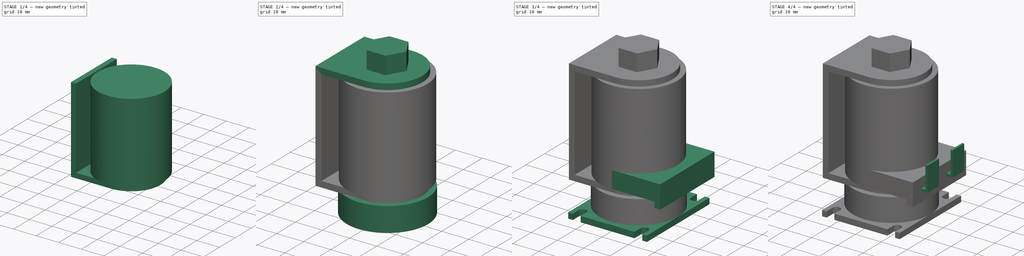
[diagram: build sequence overview — one tinted view per stage of 4, left to right]
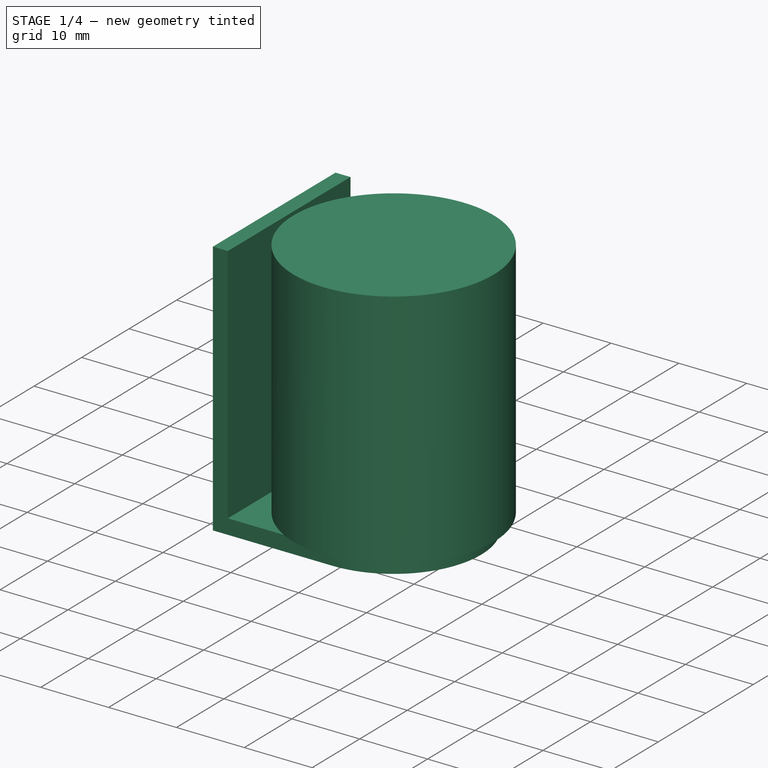
[diagram: stage 1 of 4 — iso view after this stage's code; geometry added in this stage tinted green]
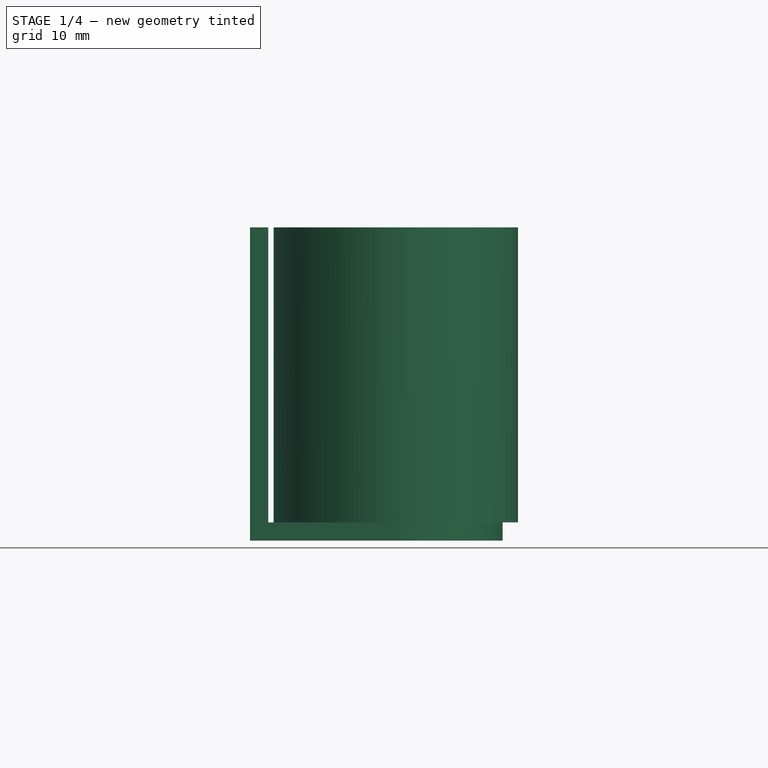
[diagram: stage 1 of 4 — front view after this stage's code; geometry added in this stage tinted green]
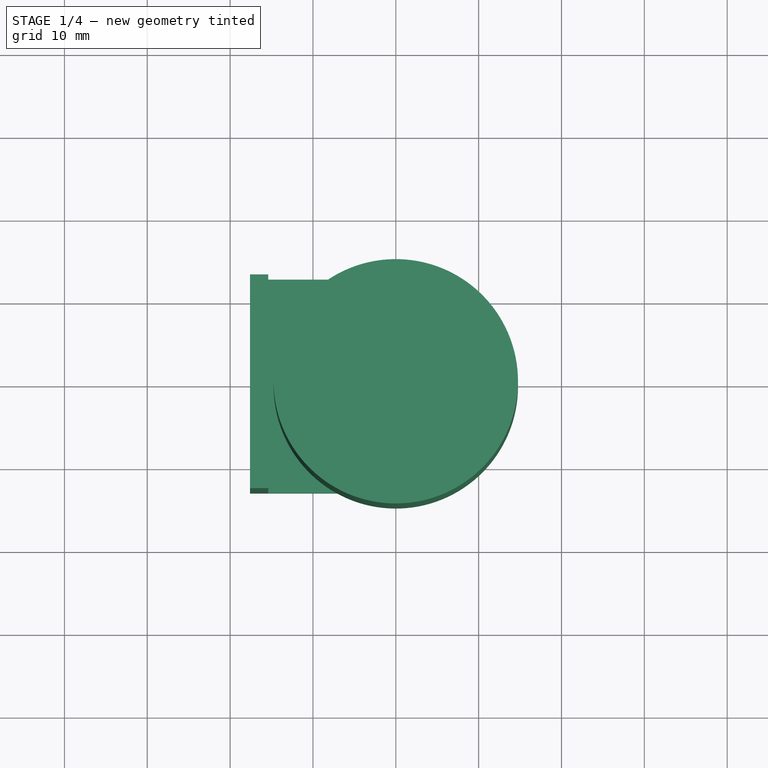
[diagram: stage 1 of 4 — top view after this stage's code; geometry added in this stage tinted green]
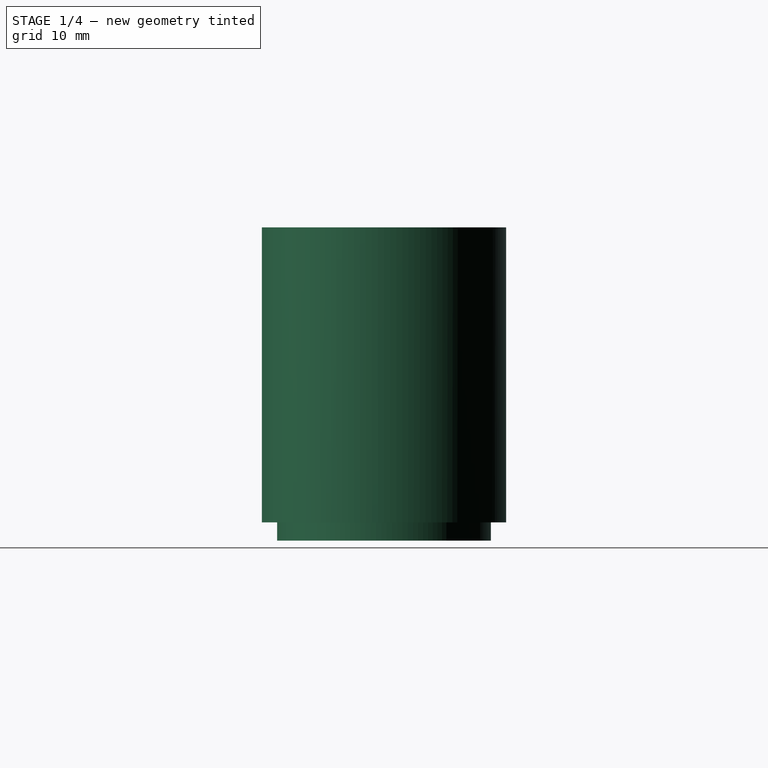
[diagram: stage 1 of 4 — right view after this stage's code; geometry added in this stage tinted green]
FCSTD DOCUMENT  (FreeCAD 1.0R39109 (Git))
Label: Coil 46.008.111
License: All rights reserved
LicenseURL: https://en.wikipedia.org/wiki/All_rights_reserved
objects: Sketcher::SketchObject×10, PartDesign::Pad×10, PartDesign::Body×1
note: 51 computed .brp shape members not serialized (recipe doc carries the construction recipe); baked Part::Feature solids carry a one-line shape summary decoded from their .brp

FEATURE [Sketcher::SketchObject] Sketch
  ArcFitTolerance = 1e-06
  AttachmentSupport = -> [XY_Plane]
  FullyConstrained = true
  MakeInternals = false
  MapMode = 5
  sketch-geometry (5):
    g0: ArcOfCircle CenterX=0 CenterY=0 CenterZ=0 NormalX=0 NormalY=0 NormalZ=1 AngleXU=0 Radius=12.9 StartAngle=4.71239 EndAngle=7.85398
    g1: LineSegment StartX=-4.9864e-12 StartY=-12.9 StartZ=0 EndX=-17.6 EndY=-12.9 EndZ=0
    g2: LineSegment StartX=-4.9915e-12 StartY=12.9 StartZ=0 EndX=-17.6 EndY=12.9 EndZ=0
    g3: LineSegment StartX=-17.6 StartY=12.9 StartZ=0 EndX=-17.6 EndY=-12.9 EndZ=0
    g4: LineSegment [constr] StartX=-17.6 StartY=8e-16 StartZ=0 EndX=12.9 EndY=8e-16 EndZ=0
  constraints (13):
    c: Tangent(g0,g1) = 1.5708
    c: Tangent(g0,g2) = -1.5708
    c: Horizontal(g2)
    c: Coincident(g0,g-1)
    c: Coincident(g3,g2)
    c: Coincident(g3,g1)
    c: Vertical(g3)
    c: Horizontal(g1)
    c: Symmetric(g3,g3,g4)
    c: PointOnObject(g4,g0)
    c: Horizontal(g4)
    c: DistanceX(g4,g4) = 30.5
    c: Diameter(g0) = 25.8
FEATURE [PartDesign::Pad] Pad  label="Pad Metal1"
  Direction = (0,0,1)
  Length = 2.2
  Length2 = 10
  Profile = -> Sketch
  ReferenceAxis = -> Sketch [N_Axis]
  Refine = true
  Suppressed = false
  Type = 0
FEATURE [Sketcher::SketchObject] Sketch001
  ArcFitTolerance = 1e-06
  AttachmentOffset = pos=(0,0,2.2) rot=(0,0,1;0rad)
  AttachmentSupport = -> [XY_Plane]
  ExternalGeometry = -> [Pad]
  FullyConstrained = true
  MakeInternals = false
  MapMode = 5
  Placement = pos=(0,0,2.2) rot=(0,0,1;0rad)
  sketch-geometry (5):
    g0: Circle CenterX=0 CenterY=0 CenterZ=0 NormalX=0 NormalY=0 NormalZ=1 AngleXU=0 Radius=14.75
    g1: LineSegment StartX=-17.6 StartY=12.9 StartZ=0 EndX=-17.6 EndY=-12.9 EndZ=0
    g2: LineSegment StartX=-17.6 StartY=-12.9 StartZ=0 EndX=-15.4 EndY=-12.9 EndZ=0
    g3: LineSegment StartX=-15.4 StartY=-12.9 StartZ=0 EndX=-15.4 EndY=12.9 EndZ=0
    g4: LineSegment StartX=-15.4 StartY=12.9 StartZ=0 EndX=-17.6 EndY=12.9 EndZ=0
  constraints (12):
    c: Coincident(g0,g-1)
    c: Diameter(g0) = 29.5
    c: Coincident(g1,g2)
    c: Coincident(g2,g3)
    c: Coincident(g3,g4)
    c: Coincident(g4,g1)
    c: Vertical(g1)
    c: Horizontal(g2)
    c: Horizontal(g4)
    c: Coincident(g1,g-3)
    c: Symmetric(g2,g3,g-1)
    c: DistanceX(g4,g4) = 2.2
FEATURE [PartDesign::Pad] Pad001  label="Pad Coil"
  BaseFeature = -> Pad
  Direction = (0,0,1)
  Length = 35.6
  Length2 = 10
  Profile = -> Sketch001
  ReferenceAxis = -> Sketch001 [N_Axis]
  Refine = true
  Suppressed = false
  Type = 0
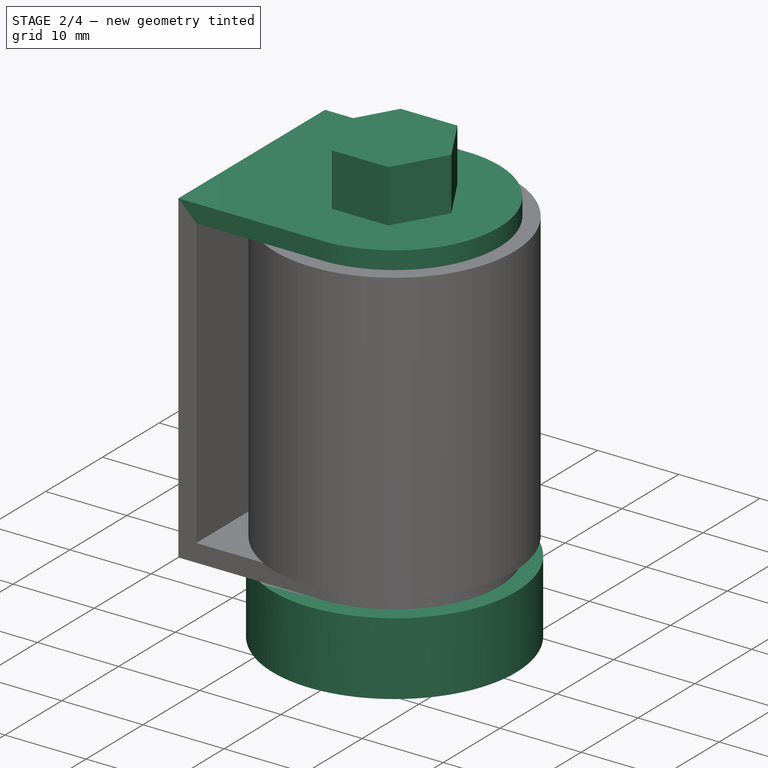
[diagram: stage 2 of 4 — iso view after this stage's code; geometry added in this stage tinted green]
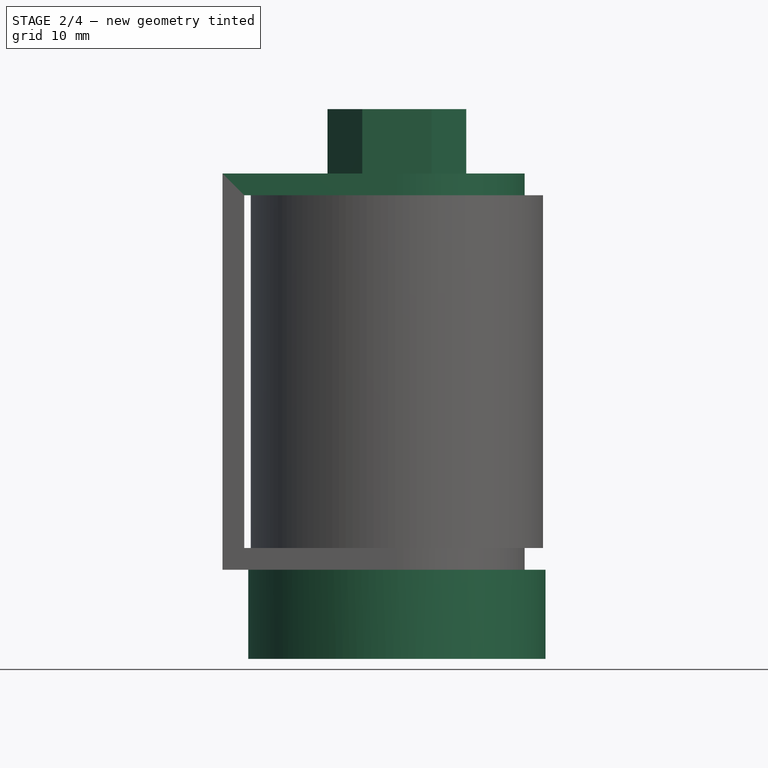
[diagram: stage 2 of 4 — front view after this stage's code; geometry added in this stage tinted green]
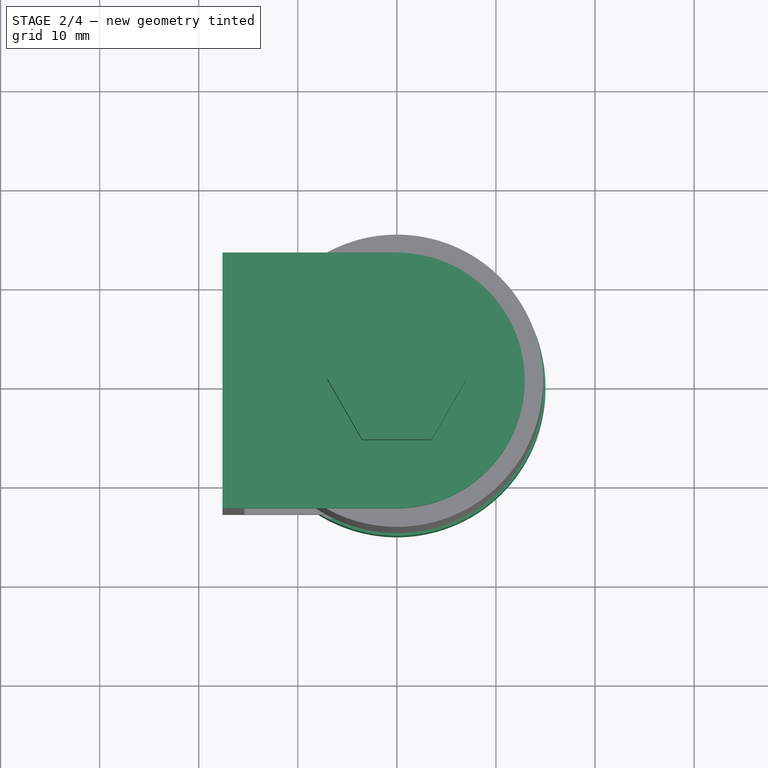
[diagram: stage 2 of 4 — top view after this stage's code; geometry added in this stage tinted green]
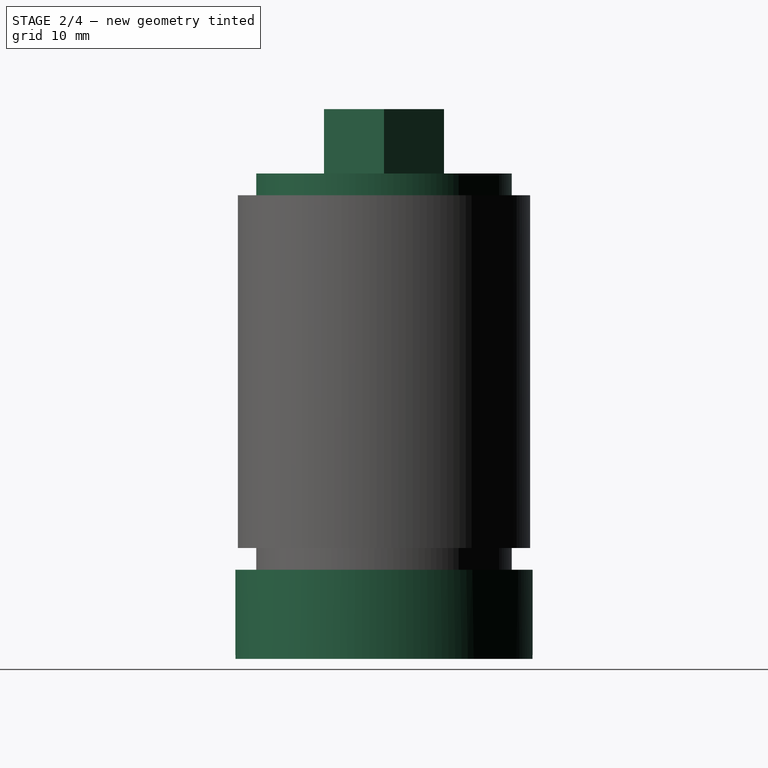
[diagram: stage 2 of 4 — right view after this stage's code; geometry added in this stage tinted green]
FEATURE [Sketcher::SketchObject] Sketch002
  ArcFitTolerance = 1e-06
  AttachmentOffset = pos=(0,0,37.8) rot=(0,0,1;0rad)
  AttachmentSupport = -> [XY_Plane]
  ExternalGeometry = -> [Pad]
  FullyConstrained = false
  MakeInternals = false
  MapMode = 5
  Placement = pos=(0,0,37.8) rot=(0,0,1;0rad)
  expr: .AttachmentOffset.Base.z = 40 - 2.2
  sketch-geometry (4):
    g0: LineSegment StartX=-17.6 StartY=12.9 StartZ=0 EndX=-4.9916e-12 EndY=12.9 EndZ=0
    g1: LineSegment StartX=-17.6 StartY=12.9 StartZ=0 EndX=-17.6 EndY=-12.9 EndZ=0
    g2: LineSegment StartX=-17.6 StartY=-12.9 StartZ=0 EndX=0 EndY=-12.9 EndZ=0
    g3: ArcOfCircle CenterX=0 CenterY=0 CenterZ=0 NormalX=0 NormalY=0 NormalZ=1 AngleXU=0 Radius=12.9 StartAngle=4.71239 EndAngle=7.85398
  constraints (8):
    c: Coincident(g0,g-3)
    c: Coincident(g0,g-3)
    c: Coincident(g1,g0)
    c: Coincident(g1,g-4)
    c: Coincident(g2,g1)
    c: Coincident(g2,g-4)
    c: Coincident(g3,g-1)
    c: Coincident(g3,g-3)
FEATURE [PartDesign::Pad] Pad002  label="Pad Metal 2"
  BaseFeature = -> Pad001
  Direction = (0,0,1)
  Length = 2.2
  Length2 = 10
  Profile = -> Sketch002
  ReferenceAxis = -> Sketch002 [N_Axis]
  Refine = true
  Suppressed = false
  Type = 0
FEATURE [Sketcher::SketchObject] Sketch003
  ArcFitTolerance = 1e-06
  AttachmentOffset = pos=(0,0,40) rot=(0,0,1;0rad)
  AttachmentSupport = -> [XY_Plane]
  FullyConstrained = true
  MakeInternals = false
  MapMode = 5
  Placement = pos=(0,0,40) rot=(0,0,1;0rad)
  sketch-geometry (7):
    g0: LineSegment StartX=3.5 StartY=6.06218 StartZ=0 EndX=-3.5 EndY=6.06218 EndZ=0
    g1: LineSegment StartX=-3.5 StartY=6.06218 StartZ=0 EndX=-7 EndY=0 EndZ=0
    g2: LineSegment StartX=-7 StartY=0 StartZ=0 EndX=-3.5 EndY=-6.06218 EndZ=0
    g3: LineSegment StartX=-3.5 StartY=-6.06218 StartZ=0 EndX=3.5 EndY=-6.06218 EndZ=0
    g4: LineSegment StartX=3.5 StartY=-6.06218 StartZ=0 EndX=7 EndY=-9e-16 EndZ=0
    g5: LineSegment StartX=7 StartY=-9e-16 StartZ=0 EndX=3.5 EndY=6.06218 EndZ=0
    g6: Circle [constr] CenterX=0 CenterY=0 CenterZ=0 NormalX=0 NormalY=0 NormalZ=1 AngleXU=0 Radius=7
  constraints (16):
    c: Coincident(g0,g1)
    c: Coincident(g1,g2)
    c: Coincident(g2,g3)
    c: Coincident(g3,g4)
    c: Coincident(g4,g5)
    c: Coincident(g5,g0)
    c: Equal(g0, g1-g5) x5
    c: PointOnObject(g0,g6)
    c: PointOnObject(g1,g6)
    c: PointOnObject(g2,g6)
    c: PointOnObject(g3,g6)
    c: PointOnObject(g4,g6)
    c: PointOnObject(g5,g6)
    c: Coincident(g6,g-1)
    c: Horizontal(g0)
    c: Diameter(g6) = 14
FEATURE [PartDesign::Pad] Pad003  label="Pad nut"
  BaseFeature = -> Pad002
  Direction = (0,0,1)
  Length = 6.5
  Length2 = 10
  Profile = -> Sketch003
  ReferenceAxis = -> Sketch003 [N_Axis]
  Refine = true
  Suppressed = false
  Type = 0
FEATURE [Sketcher::SketchObject] Sketch004
  ArcFitTolerance = 1e-06
  AttachmentSupport = -> [XY_Plane]
  FullyConstrained = true
  MakeInternals = false
  MapMode = 5
  sketch-geometry (1):
    g0: Circle CenterX=0 CenterY=0 CenterZ=0 NormalX=0 NormalY=0 NormalZ=1 AngleXU=0 Radius=15
  constraints (2):
    c: Coincident(g0,g-1)
    c: Diameter(g0) = 30
FEATURE [PartDesign::Pad] Pad004
  BaseFeature = -> Pad003
  Direction = (0,0,1)
  Length = 9
  Length2 = 10
  Profile = -> Sketch004
  ReferenceAxis = -> Sketch004 [N_Axis]
  Refine = true
  Reversed = true
  Suppressed = false
  Type = 0
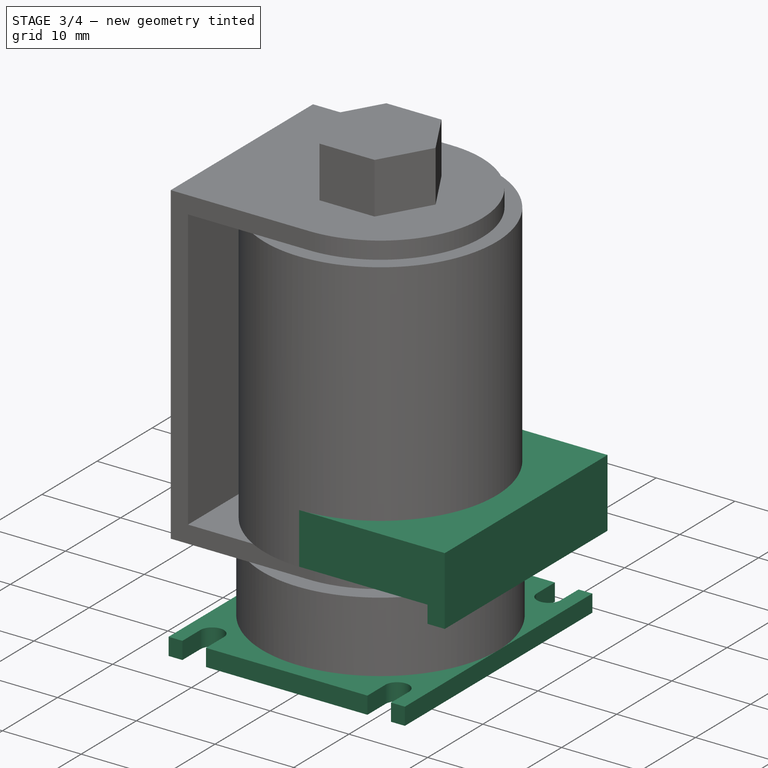
[diagram: stage 3 of 4 — iso view after this stage's code; geometry added in this stage tinted green]
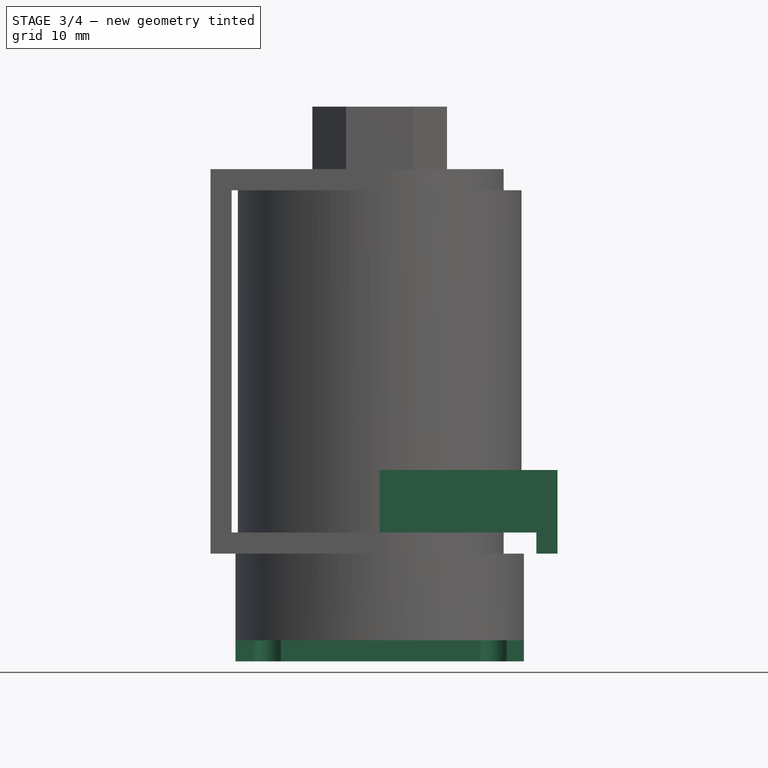
[diagram: stage 3 of 4 — front view after this stage's code; geometry added in this stage tinted green]
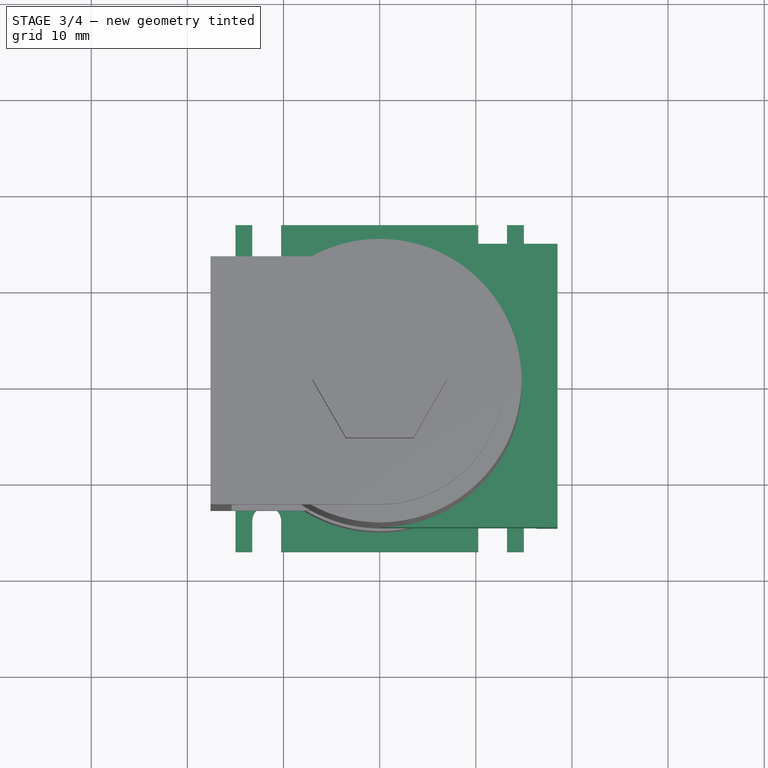
[diagram: stage 3 of 4 — top view after this stage's code; geometry added in this stage tinted green]
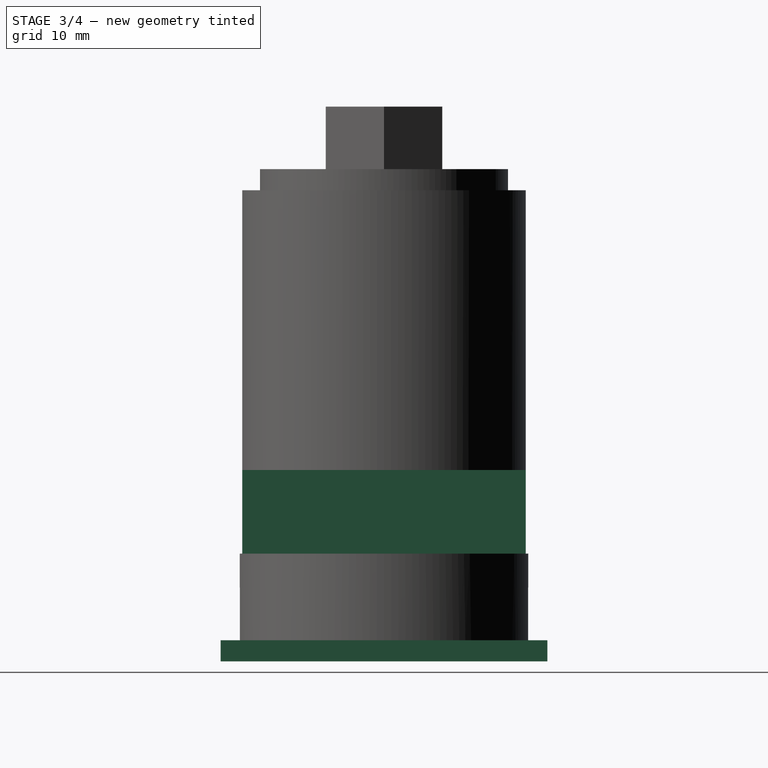
[diagram: stage 3 of 4 — right view after this stage's code; geometry added in this stage tinted green]
FEATURE [Sketcher::SketchObject] Sketch005
  ArcFitTolerance = 1e-06
  AttachmentOffset = pos=(0,0,-9) rot=(0,0,1;0rad)
  AttachmentSupport = -> [XY_Plane]
  FullyConstrained = true
  MakeInternals = false
  MapMode = 5
  Placement = pos=(0,0,-9) rot=(0,0,1;0rad)
  sketch-geometry (20):
    g0: LineSegment StartX=-15 StartY=17 StartZ=0 EndX=-15 EndY=-17 EndZ=0
    g1: LineSegment StartX=-15 StartY=-17 StartZ=0 EndX=-13.25 EndY=-17 EndZ=0
    g2: LineSegment StartX=15 StartY=-17 StartZ=0 EndX=15 EndY=17 EndZ=0
    g3: LineSegment StartX=15 StartY=17 StartZ=0 EndX=13.25 EndY=17 EndZ=0
    g4: ArcOfCircle CenterX=-11.75 CenterY=13.75 CenterZ=0 NormalX=0 NormalY=0 NormalZ=1 AngleXU=0 Radius=1.5 StartAngle=3.14159 EndAngle=6.28319
    g5: LineSegment StartX=-13.25 StartY=13.75 StartZ=0 EndX=-13.25 EndY=17 EndZ=0
    g6: LineSegment StartX=-10.25 StartY=13.75 StartZ=0 EndX=-10.25 EndY=17 EndZ=0
    g7: ArcOfCircle CenterX=11.75 CenterY=13.75 CenterZ=0 NormalX=0 NormalY=0 NormalZ=1 AngleXU=0 Radius=1.5 StartAngle=3.14159 EndAngle=6.28319
    g8: LineSegment StartX=10.25 StartY=13.75 StartZ=0 EndX=10.25 EndY=17 EndZ=0
    g9: LineSegment StartX=13.25 StartY=13.75 StartZ=0 EndX=13.25 EndY=17 EndZ=0
    g10: ArcOfCircle CenterX=11.75 CenterY=-13.75 CenterZ=0 NormalX=0 NormalY=0 NormalZ=1 AngleXU=0 Radius=1.5 StartAngle=4e-16 EndAngle=3.14159
    g11: LineSegment StartX=13.25 StartY=-13.75 StartZ=0 EndX=13.25 EndY=-17 EndZ=0
    g12: LineSegment StartX=10.25 StartY=-13.75 StartZ=0 EndX=10.25 EndY=-17 EndZ=0
    g13: ArcOfCircle CenterX=-11.75 CenterY=-13.75 CenterZ=0 NormalX=0 NormalY=0 NormalZ=1 AngleXU=0 Radius=1.5 StartAngle=3e-16 EndAngle=3.14159
    g14: LineSegment StartX=-10.25 StartY=-13.75 StartZ=0 EndX=-10.25 EndY=-17 EndZ=0
    g15: LineSegment StartX=-13.25 StartY=-13.75 StartZ=0 EndX=-13.25 EndY=-17 EndZ=0
    g16: LineSegment StartX=-10.25 StartY=-17 StartZ=0 EndX=10.25 EndY=-17 EndZ=0
    g17: LineSegment StartX=13.25 StartY=-17 StartZ=0 EndX=15 EndY=-17 EndZ=0
    g18: LineSegment StartX=10.25 StartY=17 StartZ=0 EndX=-10.25 EndY=17 EndZ=0
    g19: LineSegment StartX=-13.25 StartY=17 StartZ=0 EndX=-15 EndY=17 EndZ=0
  constraints (58):
    c: Coincident(g0,g1)
    c: Coincident(g17,g2)
    c: Coincident(g2,g3)
    c: Coincident(g19,g0)
    c: Vertical(g0)
    c: Horizontal(g1)
    c: Symmetric(g0,g2,g-2)
    c: Tangent(g4,g5) = 1.5708
    c: Tangent(g4,g6) = -1.5708
    c: Vertical(g6)
    c: Tangent(g7,g8) = 1.5708
    c: Tangent(g7,g9) = -1.5708
    c: Vertical(g8)
    c: Tangent(g10,g11) = 1.5708
    c: Tangent(g10,g12) = -1.5708
    c: Vertical(g11)
    c: Tangent(g13,g14) = 1.5708
    c: Tangent(g13,g15) = -1.5708
    c: Vertical(g14)
    c: Vertical(g4,g13)
    c: Vertical(g10,g7)
    c: Horizontal(g4,g7)
    c: PointOnObject(g5,g19)
    c: PointOnObject(g8,g18)
    c: PointOnObject(g11,g17)
    c: PointOnObject(g14,g16)
    c: Coincident(g1,g15)
    c: PointOnObject(g16,g14)
    c: Coincident(g16,g12)
    c: PointOnObject(g17,g11)
    c: Coincident(g3,g9)
    c: PointOnObject(g18,g8)
    c: Coincident(g18,g6)
    c: PointOnObject(g19,g5)
    c: Equal(g19,g1)
    c: Equal(g1,g17)
    c: Equal(g17,g3)
    c: Equal(g9,g11)
    c: Equal(g10,g7)
    c: Equal(g9,g6)
    c: Equal(g4,g7)
    c: Equal(g7,g13)
    c: Vertical(g5)
    c: Vertical(g12)
    c: Horizontal(g18)
    c: Horizontal(g3)
    c: Horizontal(g19)
    c: Horizontal(g5,g6)
    c: Horizontal(g12,g11)
    c: Horizontal(g16)
    c: Horizontal(g1,g14)
    c: DistanceX(g8,g3) = 3
    c: DistanceX(g0,g2) = 30
    c: DistanceY(g2,g2) = 34
    c: Equal(g9,g14)
    c: Symmetric(g2,g2,g-1)
    c: DistanceX(g4,g7) = 23.5
    c: DistanceY(g13,g4) = 27.5
FEATURE [PartDesign::Pad] Pad005  label="Pad mount"
  BaseFeature = -> Pad004
  Direction = (0,0,1)
  Length = 2.2
  Length2 = 10
  Profile = -> Sketch005
  ReferenceAxis = -> Sketch005 [N_Axis]
  Refine = true
  Reversed = true
  Suppressed = false
  Type = 0
FEATURE [Sketcher::SketchObject] Sketch006
  ArcFitTolerance = 1e-06
  AttachmentOffset = pos=(0,0,2.2) rot=(0,0,1;0rad)
  AttachmentSupport = -> [XY_Plane]
  FullyConstrained = true
  MakeInternals = false
  MapMode = 5
  Placement = pos=(0,0,2.2) rot=(0,0,1;0rad)
  sketch-geometry (4):
    g0: LineSegment StartX=0 StartY=14.75 StartZ=0 EndX=0 EndY=-14.75 EndZ=0
    g1: LineSegment StartX=0 StartY=-14.75 StartZ=0 EndX=18.5 EndY=-14.75 EndZ=0
    g2: LineSegment StartX=18.5 StartY=-14.75 StartZ=0 EndX=18.5 EndY=14.75 EndZ=0
    g3: LineSegment StartX=18.5 StartY=14.75 StartZ=0 EndX=0 EndY=14.75 EndZ=0
  constraints (11):
    c: Coincident(g0,g1)
    c: Coincident(g1,g2)
    c: Coincident(g2,g3)
    c: Coincident(g3,g0)
    c: Vertical(g0)
    c: Horizontal(g1)
    c: Horizontal(g3)
    c: Symmetric(g2,g1,g-1)
    c: DistanceY(g2,g2) = 29.5
    c: DistanceX(g3,g3) = 18.5
    c: PointOnObject(g0,g-2)
FEATURE [PartDesign::Pad] Pad006
  BaseFeature = -> Pad005
  Direction = (0,0,1)
  Length = 6.5
  Length2 = 10
  Profile = -> Sketch006
  ReferenceAxis = -> Sketch006 [N_Axis]
  Refine = true
  Suppressed = false
  Type = 0
FEATURE [Sketcher::SketchObject] Sketch007
  ArcFitTolerance = 1e-06
  AttachmentSupport = -> [XY_Plane]
  ExternalGeometry = -> [Pad006]
  FullyConstrained = true
  MakeInternals = false
  MapMode = 5
  sketch-geometry (4):
    g0: LineSegment StartX=18.5 StartY=14.75 StartZ=0 EndX=16.3 EndY=14.75 EndZ=0
    g1: LineSegment StartX=16.3 StartY=14.75 StartZ=0 EndX=16.3 EndY=-14.75 EndZ=0
    g2: LineSegment StartX=16.3 StartY=-14.75 StartZ=0 EndX=18.5 EndY=-14.75 EndZ=0
    g3: LineSegment StartX=18.5 StartY=-14.75 StartZ=0 EndX=18.5 EndY=14.75 EndZ=0
  constraints (11):
    c: Coincident(g0,g1)
    c: Coincident(g1,g2)
    c: Coincident(g2,g3)
    c: Coincident(g3,g0)
    c: Horizontal(g0)
    c: Horizontal(g2)
    c: Vertical(g1)
    c: Vertical(g3)
    c: Coincident(g0,g-3)
    c: PointOnObject(g-3,g2)
    c: DistanceX(g0,g0) = 2.2
FEATURE [PartDesign::Pad] Pad007
  BaseFeature = -> Pad006
  Direction = (0,0,1)
  Length = 2.2
  Length2 = 10
  Profile = -> Sketch007
  ReferenceAxis = -> Sketch007 [N_Axis]
  Refine = true
  Suppressed = false
  Type = 0
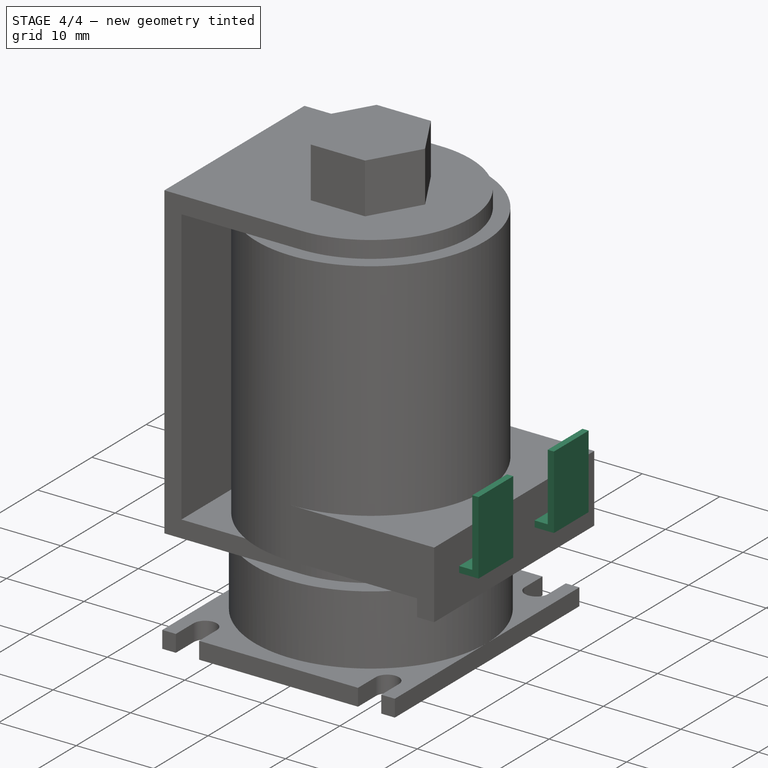
[diagram: stage 4 of 4 — iso view after this stage's code; geometry added in this stage tinted green]
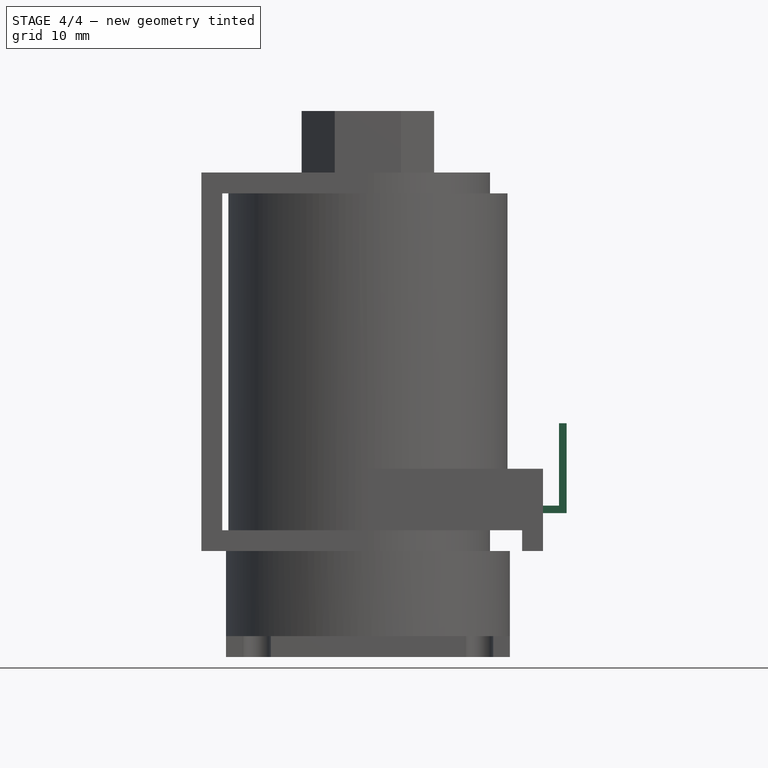
[diagram: stage 4 of 4 — front view after this stage's code; geometry added in this stage tinted green]
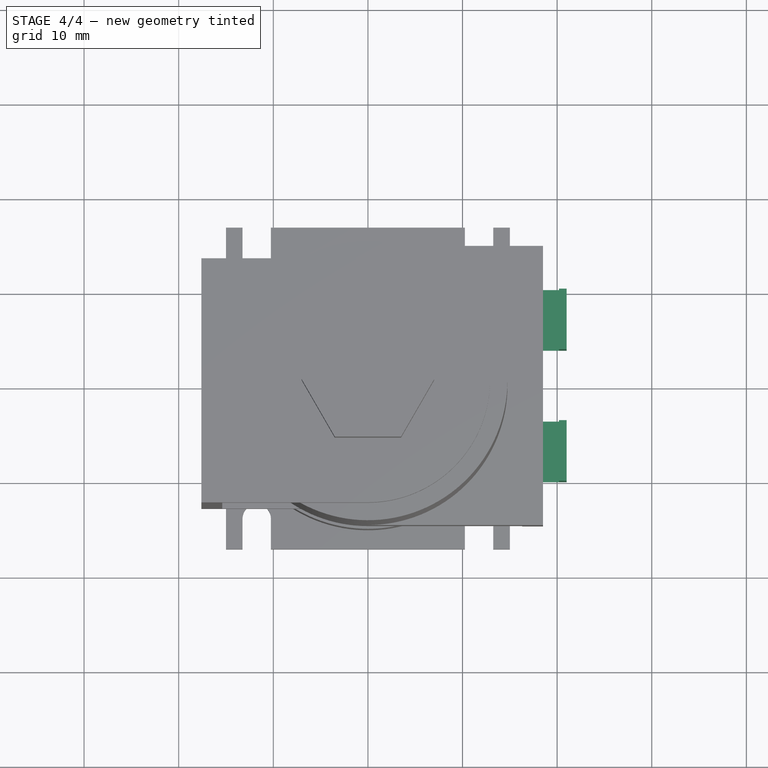
[diagram: stage 4 of 4 — top view after this stage's code; geometry added in this stage tinted green]
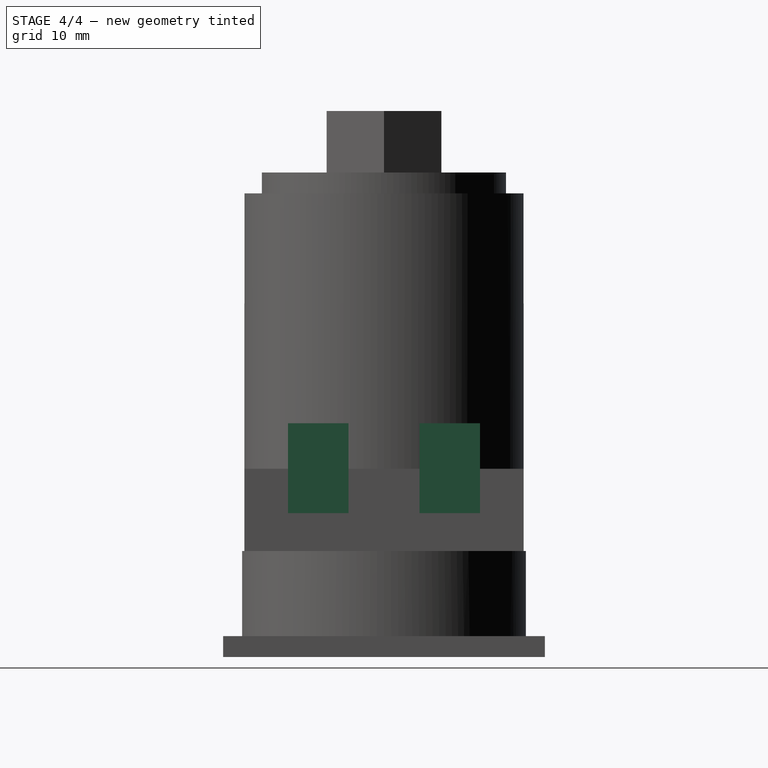
[diagram: stage 4 of 4 — right view after this stage's code; geometry added in this stage tinted green]
FEATURE [Sketcher::SketchObject] Sketch008
  ArcFitTolerance = 1e-06
  AttachmentOffset = pos=(0,0,4) rot=(0,0,1;0rad)
  AttachmentSupport = -> [XY_Plane]
  ExternalGeometry = -> [Pad007]
  FullyConstrained = true
  MakeInternals = false
  MapMode = 5
  Placement = pos=(0,0,4) rot=(0,0,1;0rad)
  sketch-geometry (8):
    g0: LineSegment StartX=18.5 StartY=10.15 StartZ=0 EndX=18.5 EndY=3.75 EndZ=0
    g1: LineSegment StartX=18.5 StartY=3.75 StartZ=0 EndX=21 EndY=3.75 EndZ=0
    g2: LineSegment StartX=21 StartY=3.75 StartZ=0 EndX=21 EndY=10.15 EndZ=0
    g3: LineSegment StartX=21 StartY=10.15 StartZ=0 EndX=18.5 EndY=10.15 EndZ=0
    g4: LineSegment StartX=18.5 StartY=-3.75 StartZ=0 EndX=18.5 EndY=-10.15 EndZ=0
    g5: LineSegment StartX=18.5 StartY=-10.15 StartZ=0 EndX=21 EndY=-10.15 EndZ=0
    g6: LineSegment StartX=21 StartY=-10.15 StartZ=0 EndX=21 EndY=-3.75 EndZ=0
    g7: LineSegment StartX=21 StartY=-3.75 StartZ=0 EndX=18.5 EndY=-3.75 EndZ=0
  constraints (23):
    c: Coincident(g0,g1)
    c: Coincident(g1,g2)
    c: Coincident(g2,g3)
    c: Coincident(g3,g0)
    c: Vertical(g0)
    c: Vertical(g2)
    c: Horizontal(g1)
    c: Horizontal(g3)
    c: Coincident(g4,g5)
    c: Coincident(g5,g6)
    c: Coincident(g6,g7)
    c: Coincident(g7,g4)
    c: Vertical(g4)
    c: Vertical(g6)
    c: Horizontal(g5)
    c: Horizontal(g7)
    c: Vertical(g0,g4)
    c: Symmetric(g1,g6,g-1)
    c: Equal(g2,g6)
    c: DistanceY(g2,g2) = 6.4
    c: DistanceY(g5,g2) = 20.3
    c: PointOnObject(g-3,g0)
    c: DistanceX(g3,g3) = 2.5
FEATURE [PartDesign::Pad] Pad008  label="Pad E connection"
  BaseFeature = -> Pad007
  Direction = (0,0,1)
  Length = 0.8
  Length2 = 10
  Profile = -> Sketch008
  ReferenceAxis = -> Sketch008 [N_Axis]
  Refine = true
  Suppressed = false
  Type = 0
FEATURE [Sketcher::SketchObject] Sketch009
  ArcFitTolerance = 1e-06
  AttachmentOffset = pos=(0,0,4) rot=(0,0,1;0rad)
  AttachmentSupport = -> [XY_Plane]
  ExternalGeometry = -> [Pad008]
  FullyConstrained = true
  MakeInternals = false
  MapMode = 5
  Placement = pos=(0,0,4) rot=(0,0,1;0rad)
  sketch-geometry (8):
    g0: LineSegment StartX=21 StartY=10.15 StartZ=0 EndX=20.2 EndY=10.15 EndZ=0
    g1: LineSegment StartX=20.2 StartY=10.15 StartZ=0 EndX=20.2 EndY=3.75 EndZ=0
    g2: LineSegment StartX=20.2 StartY=3.75 StartZ=0 EndX=21 EndY=3.75 EndZ=0
    g3: LineSegment StartX=21 StartY=3.75 StartZ=0 EndX=21 EndY=10.15 EndZ=0
    g4: LineSegment StartX=21 StartY=-10.15 StartZ=0 EndX=21 EndY=-3.75 EndZ=0
    g5: LineSegment StartX=21 StartY=-3.75 StartZ=0 EndX=20.2 EndY=-3.75 EndZ=0
    g6: LineSegment StartX=20.2 StartY=-3.75 StartZ=0 EndX=20.2 EndY=-10.15 EndZ=0
    g7: LineSegment StartX=20.2 StartY=-10.15 StartZ=0 EndX=21 EndY=-10.15 EndZ=0
  constraints (22):
    c: Coincident(g0,g1)
    c: Coincident(g1,g2)
    c: Coincident(g2,g3)
    c: Coincident(g3,g0)
    c: Horizontal(g0)
    c: Horizontal(g2)
    c: Vertical(g1)
    c: Vertical(g3)
    c: Coincident(g0,g-3)
    c: Coincident(g4,g5)
    c: Coincident(g5,g6)
    c: Coincident(g6,g7)
    c: Coincident(g7,g4)
    c: Vertical(g4)
    c: Vertical(g6)
    c: Horizontal(g5)
    c: Horizontal(g7)
    c: Equal(g2,g5)
    c: Equal(g4,g3)
    c: Symmetric(g2,g4,g-1)
    c: PointOnObject(g-3,g2)
    c: DistanceX(g0,g0) = 0.8
FEATURE [PartDesign::Pad] Pad009
  BaseFeature = -> Pad008
  Direction = (0,0,1)
  Length = 9.5
  Length2 = 10
  Profile = -> Sketch009
  ReferenceAxis = -> Sketch009 [N_Axis]
  Refine = true
  Suppressed = false
  Type = 0
FEATURE [PartDesign::Body] Body
  AllowCompound = false
  Group = -> [Sketch,Pad,Sketch001,Pad001,Sketch002,Pad002,Sketch003,Pad003,Sketch004,Pad004,Sketch005,Pad005,Sketch006,Pad006,Sketch007,Pad007,Sketch008,Pad008,Sketch009,Pad009]
  Origin = -> Origin
  Tip = -> Pad009
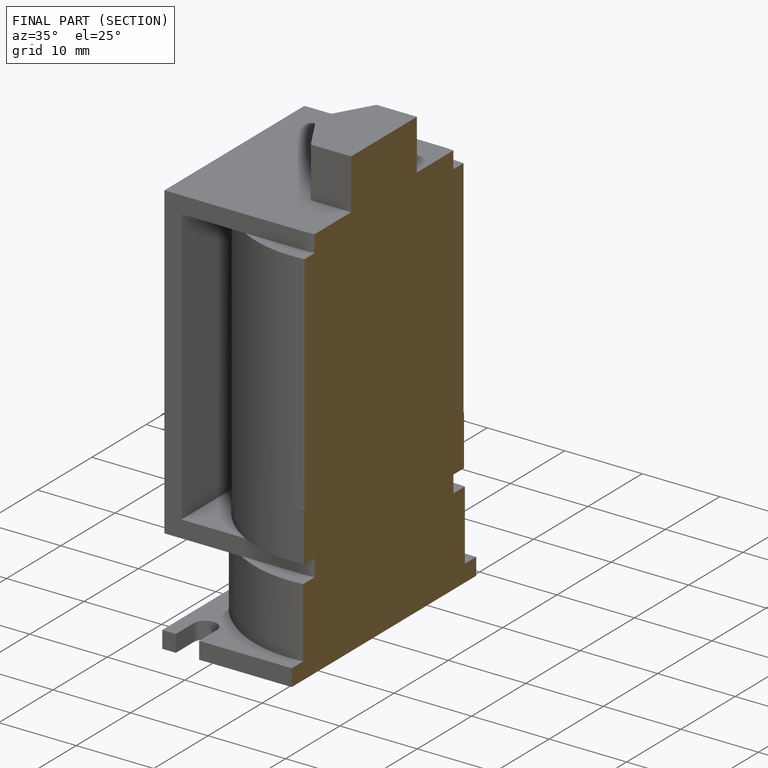
[diagram: finished part — half-section view (interior)]
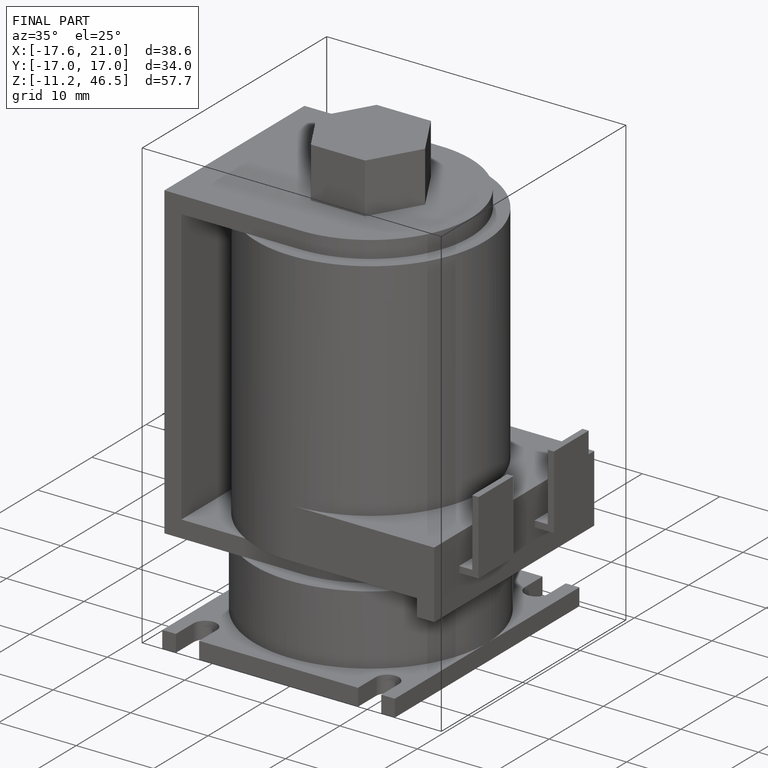
[diagram: finished part — iso view with bounding-box wireframe]
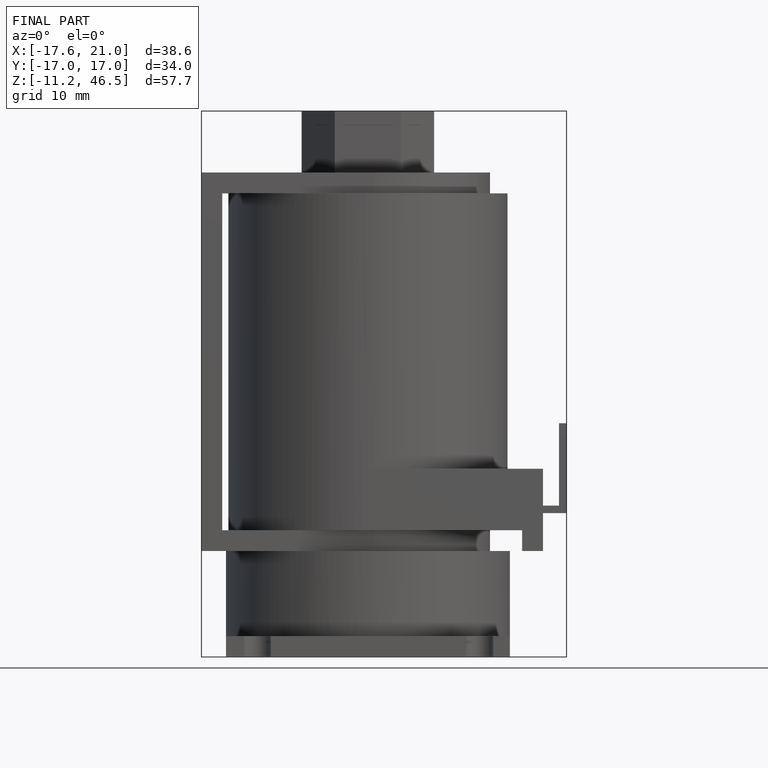
[diagram: finished part — front view with bounding-box wireframe]
